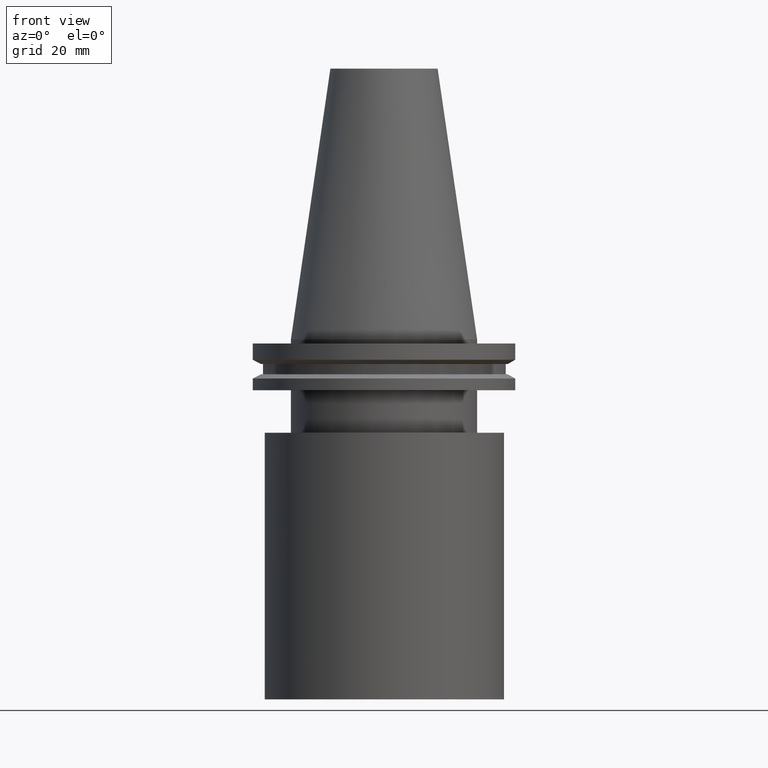
[diagram: clean part render]
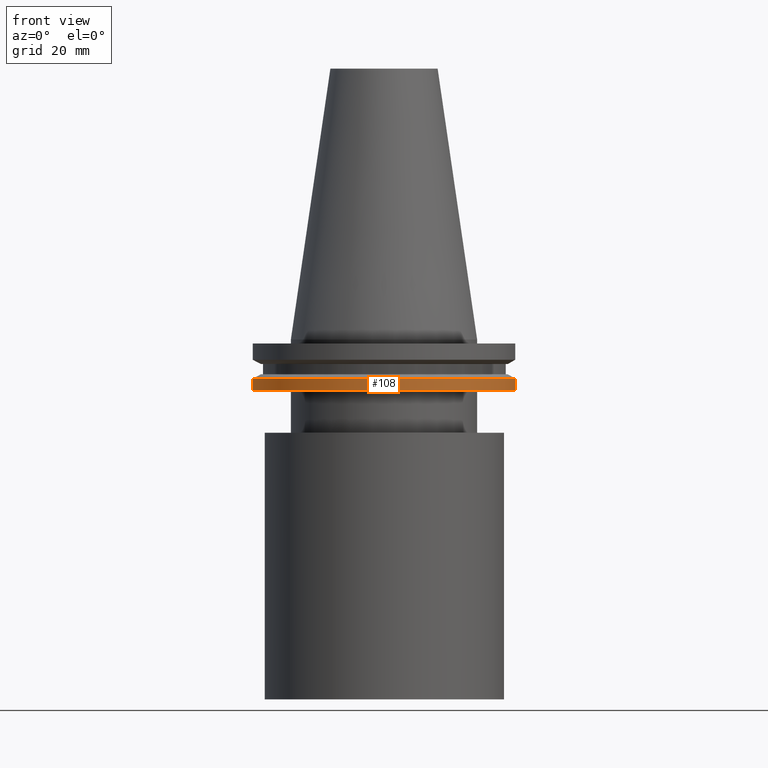
[diagram: same view with one face highlighted and labeled with its STEP entity id]
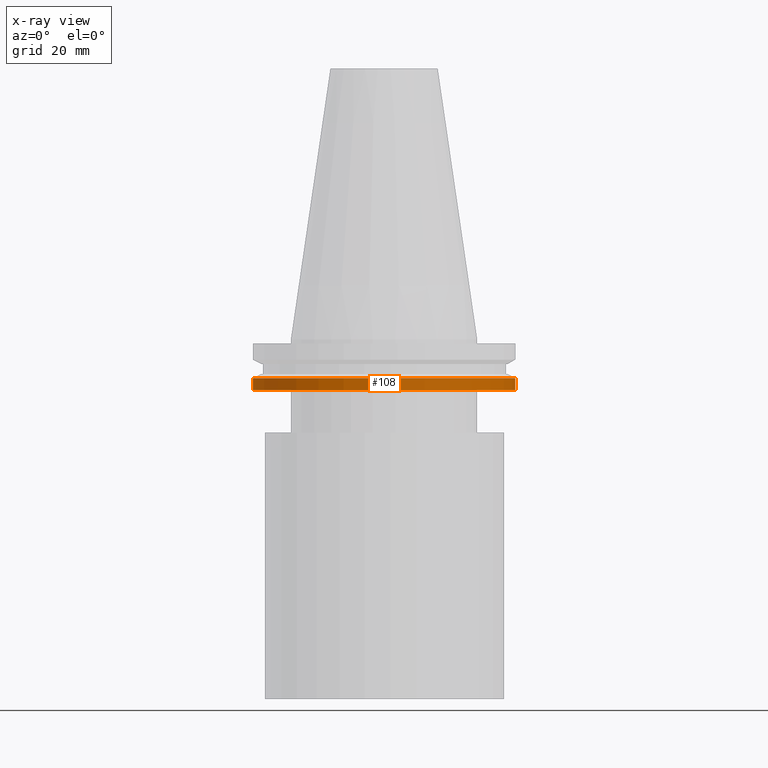
[diagram: x-ray of the same camera — body ghosted, the highlighted face saturated]
A machine part, front view. The second image highlights one B-rep face of the part: STEP entity #108.
The next image is the same camera in x-ray: the body ghosted, the highlighted face saturated — about 0% of this face is hidden behind the body in this view.
In plain terms, the highlighted cylindrical surface (bore or boss wall) has radius 49.215 mm, axis along (-0, -0, 1).
Its self-contained STEP definition (entity closure, byte-faithful):
#18 = CARTESIAN_POINT ( 'NONE',  ( 0.000000000000000000, 0.000000000000000000, -19.04999999999999716 ) ) ;
#23 = VERTEX_POINT ( 'NONE', #391 ) ;
#80 = ORIENTED_EDGE ( 'NONE', *, *, #321, .T. ) ;
#101 = CARTESIAN_POINT ( 'NONE',  ( 0.000000000000000000, 0.000000000000000000, 101.5999999999999943 ) ) ;
#108 = ADVANCED_FACE ( 'NONE', ( #203, #292 ), #138, .T. ) ;
#138 = CYLINDRICAL_SURFACE ( 'NONE', #289, 49.21499999999998920 ) ;
#153 = EDGE_CURVE ( 'NONE', #23, #23, #355, .T. ) ;
#163 = DIRECTION ( 'NONE',  ( -0.000000000000000000, -0.000000000000000000, 1.000000000000000000 ) ) ;
#187 = VERTEX_POINT ( 'NONE', #250 ) ;
#197 = DIRECTION ( 'NONE',  ( -0.000000000000000000, -0.000000000000000000, 1.000000000000000000 ) ) ;
#203 = FACE_OUTER_BOUND ( 'NONE', #324, .T. ) ;
#227 = CARTESIAN_POINT ( 'NONE',  ( 0.000000000000000000, 0.000000000000000000, -14.65761014474876944 ) ) ;
#239 = DIRECTION ( 'NONE',  ( 1.000000000000000000, 0.000000000000000000, 0.000000000000000000 ) ) ;
#250 = CARTESIAN_POINT ( 'NONE',  ( 49.21499999999998920, 0.000000000000000000, -19.04999999999999716 ) ) ;
#252 = AXIS2_PLACEMENT_3D ( 'NONE', #227, #163, #317 ) ;
#256 = AXIS2_PLACEMENT_3D ( 'NONE', #18, #385, #239 ) ;
#261 = DIRECTION ( 'NONE',  ( 1.000000000000000000, 0.000000000000000000, 0.000000000000000000 ) ) ;
#289 = AXIS2_PLACEMENT_3D ( 'NONE', #101, #197, #261 ) ;
#292 = FACE_OUTER_BOUND ( 'NONE', #354, .T. ) ;
#311 = CIRCLE ( 'NONE', #256, 49.21499999999998920 ) ;
#317 = DIRECTION ( 'NONE',  ( 1.000000000000000000, 0.000000000000000000, 0.000000000000000000 ) ) ;
#321 = EDGE_CURVE ( 'NONE', #187, #187, #311, .T. ) ;
#324 = EDGE_LOOP ( 'NONE', ( #332 ) ) ;
#332 = ORIENTED_EDGE ( 'NONE', *, *, #153, .F. ) ;
#354 = EDGE_LOOP ( 'NONE', ( #80 ) ) ;
#355 = CIRCLE ( 'NONE', #252, 49.21499999999998920 ) ;
#385 = DIRECTION ( 'NONE',  ( -0.000000000000000000, -0.000000000000000000, 1.000000000000000000 ) ) ;
#391 = CARTESIAN_POINT ( 'NONE',  ( 49.21499999999998920, 0.000000000000000000, -14.65761014474876944 ) ) ;